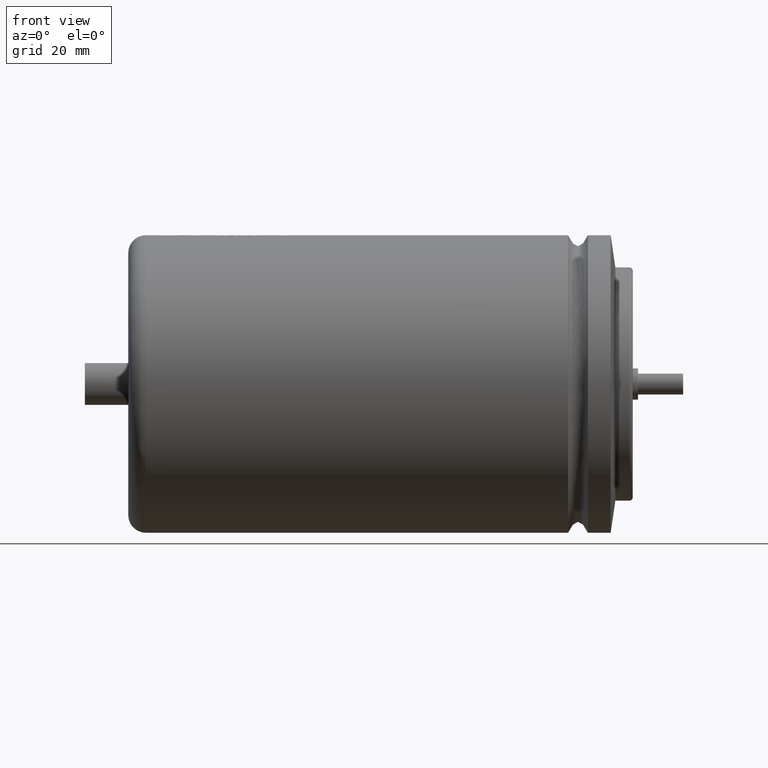
[diagram: clean part render]
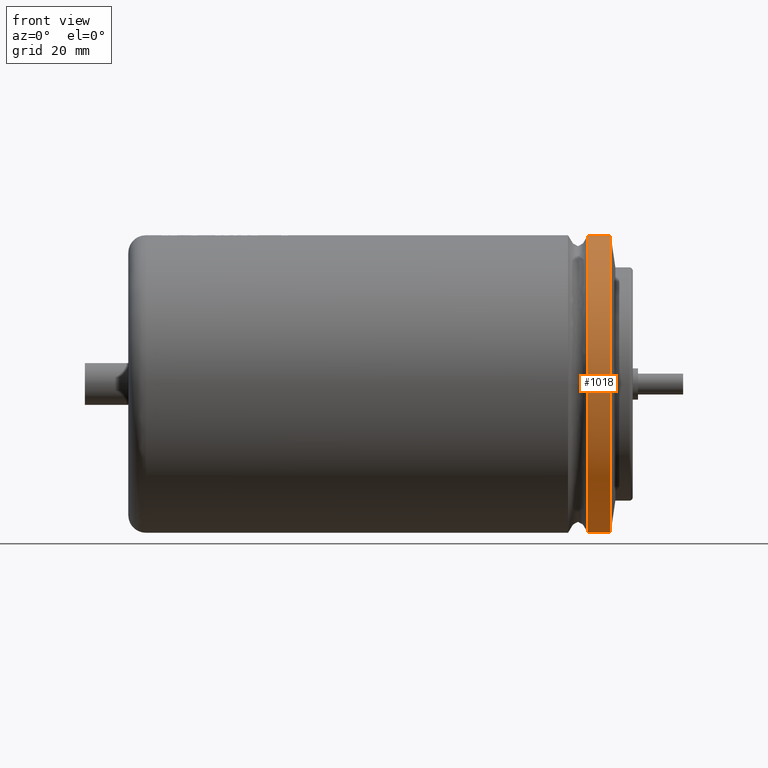
[diagram: same view with one face highlighted and labeled with its STEP entity id]
A machine part, front view. The second image highlights one B-rep face of the part: STEP entity #1018.
In plain terms, the highlighted cylindrical surface (partial cylindrical patch) has radius 42.75 mm, axis along (-1, -0, -0).
Its self-contained STEP definition (entity closure, byte-faithful):
#20 = VERTEX_POINT ( 'NONE', #3084 ) ;
#247 = DIRECTION ( 'NONE',  ( 0.0000000000000000000, 0.0000000000000000000, -1.000000000000000000 ) ) ;
#362 = DIRECTION ( 'NONE',  ( -1.000000000000000000, -0.0000000000000000000, -0.0000000000000000000 ) ) ;
#613 = LINE ( 'NONE', #2535, #3575 ) ;
#668 = CIRCLE ( 'NONE', #2909, 42.75000000000000000 ) ;
#696 = CARTESIAN_POINT ( 'NONE',  ( 138.6560000000000100, 5.235365066354935500E-015, -42.75000000000000000 ) ) ;
#879 = EDGE_CURVE ( 'NONE', #1267, #1070, #1955, .T. ) ;
#933 = DIRECTION ( 'NONE',  ( 0.0000000000000000000, 0.0000000000000000000, 1.000000000000000000 ) ) ;
#1018 = ADVANCED_FACE ( 'NONE', ( #1707 ), #1306, .T. ) ;
#1046 = CARTESIAN_POINT ( 'NONE',  ( 140.0000000000000000, 0.0000000000000000000, 42.75000000000000000 ) ) ;
#1070 = VERTEX_POINT ( 'NONE', #696 ) ;
#1157 = AXIS2_PLACEMENT_3D ( 'NONE', #2779, #2805, #933 ) ;
#1267 = VERTEX_POINT ( 'NONE', #2650 ) ;
#1306 = CYLINDRICAL_SURFACE ( 'NONE', #1157, 42.75000000000000000 ) ;
#1362 = DIRECTION ( 'NONE',  ( -1.000000000000000000, -0.0000000000000000000, -0.0000000000000000000 ) ) ;
#1430 = EDGE_LOOP ( 'NONE', ( #3648, #3976, #3894, #3634, #2549 ) ) ;
#1451 = AXIS2_PLACEMENT_3D ( 'NONE', #3342, #2376, #3670 ) ;
#1459 = DIRECTION ( 'NONE',  ( 1.000000000000000000, -0.0000000000000000000, -0.0000000000000000000 ) ) ;
#1681 = EDGE_CURVE ( 'NONE', #1267, #1722, #2167, .T. ) ;
#1707 = FACE_OUTER_BOUND ( 'NONE', #1430, .T. ) ;
#1722 = VERTEX_POINT ( 'NONE', #2068 ) ;
#1755 = EDGE_CURVE ( 'NONE', #1722, #20, #3241, .T. ) ;
#1955 = CIRCLE ( 'NONE', #1451, 42.75000000000000000 ) ;
#2068 = CARTESIAN_POINT ( 'NONE',  ( 132.1012000000000300, 0.0000000000000000000, 42.75000000000000000 ) ) ;
#2117 = CARTESIAN_POINT ( 'NONE',  ( 132.1012000000000300, 5.235365066354935500E-015, -42.75000000000000000 ) ) ;
#2167 = LINE ( 'NONE', #1046, #3664 ) ;
#2317 = AXIS2_PLACEMENT_3D ( 'NONE', #2927, #1459, #247 ) ;
#2376 = DIRECTION ( 'NONE',  ( 1.000000000000000000, -0.0000000000000000000, -0.0000000000000000000 ) ) ;
#2535 = CARTESIAN_POINT ( 'NONE',  ( 140.0000000000000000, 5.235365066354935500E-015, -42.75000000000000000 ) ) ;
#2549 = ORIENTED_EDGE ( 'NONE', *, *, #2990, .T. ) ;
#2555 = EDGE_CURVE ( 'NONE', #1070, #3878, #613, .T. ) ;
#2650 = CARTESIAN_POINT ( 'NONE',  ( 138.6560000000000100, 0.0000000000000000000, 42.75000000000000000 ) ) ;
#2719 = CARTESIAN_POINT ( 'NONE',  ( 132.1012000000000300, 0.0000000000000000000, 0.0000000000000000000 ) ) ;
#2779 = CARTESIAN_POINT ( 'NONE',  ( 140.0000000000000000, 0.0000000000000000000, 0.0000000000000000000 ) ) ;
#2805 = DIRECTION ( 'NONE',  ( -1.000000000000000000, -0.0000000000000000000, -0.0000000000000000000 ) ) ;
#2909 = AXIS2_PLACEMENT_3D ( 'NONE', #2719, #3659, #3030 ) ;
#2927 = CARTESIAN_POINT ( 'NONE',  ( 132.1012000000000300, 0.0000000000000000000, 0.0000000000000000000 ) ) ;
#2990 = EDGE_CURVE ( 'NONE', #20, #3878, #668, .T. ) ;
#3030 = DIRECTION ( 'NONE',  ( 0.0000000000000000000, 0.0000000000000000000, -1.000000000000000000 ) ) ;
#3084 = CARTESIAN_POINT ( 'NONE',  ( 132.1012000000000300, -42.75000000000000000, 5.235365066354935500E-015 ) ) ;
#3241 = CIRCLE ( 'NONE', #2317, 42.75000000000000000 ) ;
#3342 = CARTESIAN_POINT ( 'NONE',  ( 138.6560000000000100, 0.0000000000000000000, 0.0000000000000000000 ) ) ;
#3575 = VECTOR ( 'NONE', #362, 1000.000000000000000 ) ;
#3634 = ORIENTED_EDGE ( 'NONE', *, *, #1755, .T. ) ;
#3648 = ORIENTED_EDGE ( 'NONE', *, *, #2555, .F. ) ;
#3659 = DIRECTION ( 'NONE',  ( 1.000000000000000000, -0.0000000000000000000, -0.0000000000000000000 ) ) ;
#3664 = VECTOR ( 'NONE', #1362, 1000.000000000000000 ) ;
#3670 = DIRECTION ( 'NONE',  ( 0.0000000000000000000, 0.0000000000000000000, -1.000000000000000000 ) ) ;
#3878 = VERTEX_POINT ( 'NONE', #2117 ) ;
#3894 = ORIENTED_EDGE ( 'NONE', *, *, #1681, .T. ) ;
#3976 = ORIENTED_EDGE ( 'NONE', *, *, #879, .F. ) ;